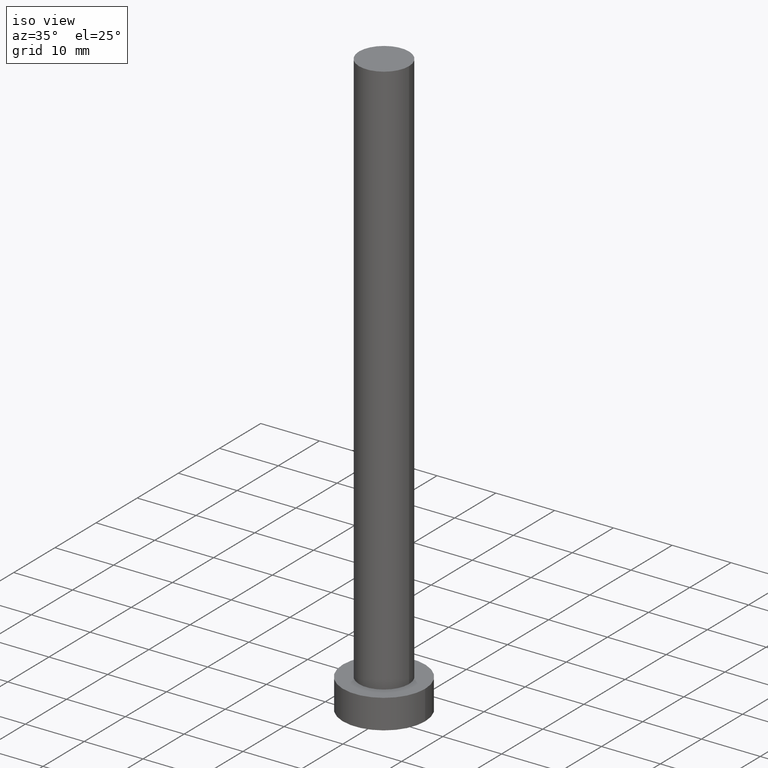
[diagram: clean part render]
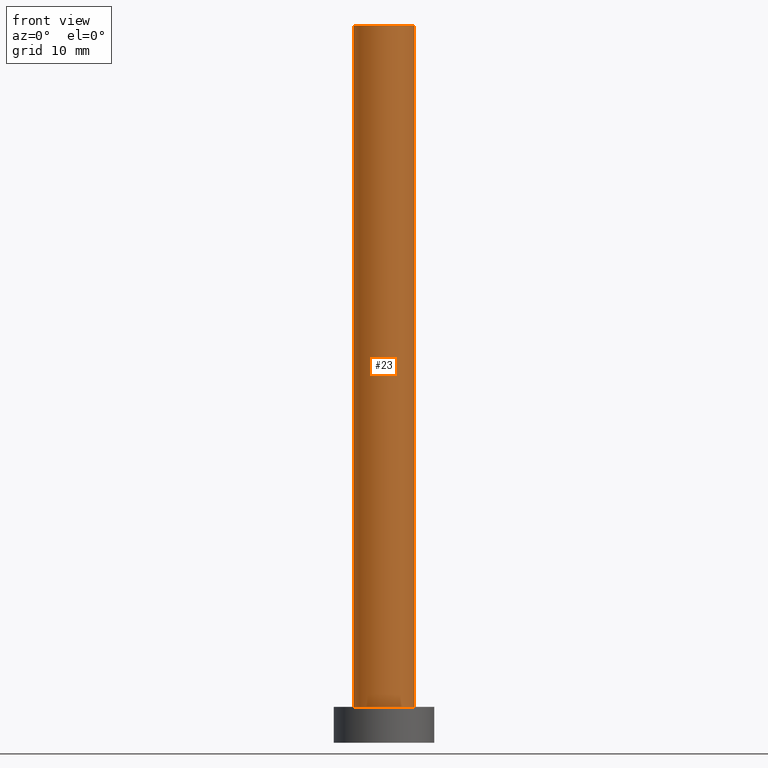
[diagram: tour spotlight — one face highlighted and labeled with its STEP entity id]
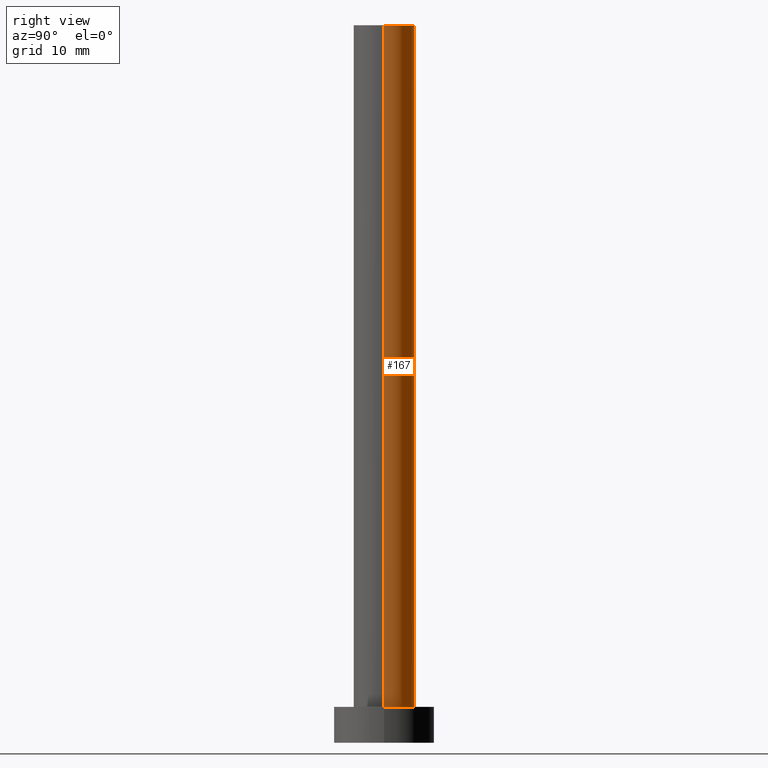
[diagram: tour spotlight — one face highlighted and labeled with its STEP entity id]
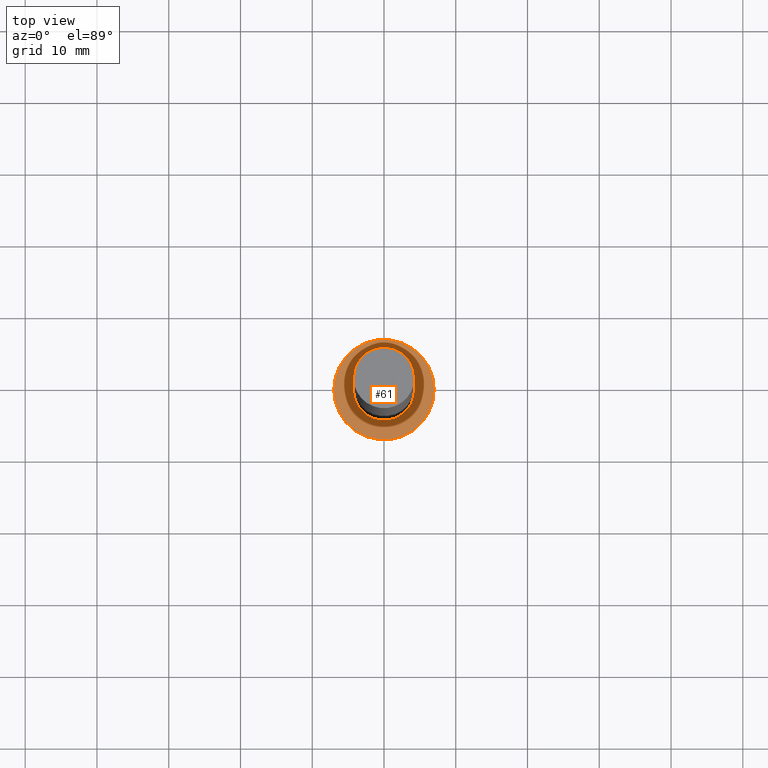
[diagram: tour spotlight — one face highlighted and labeled with its STEP entity id]
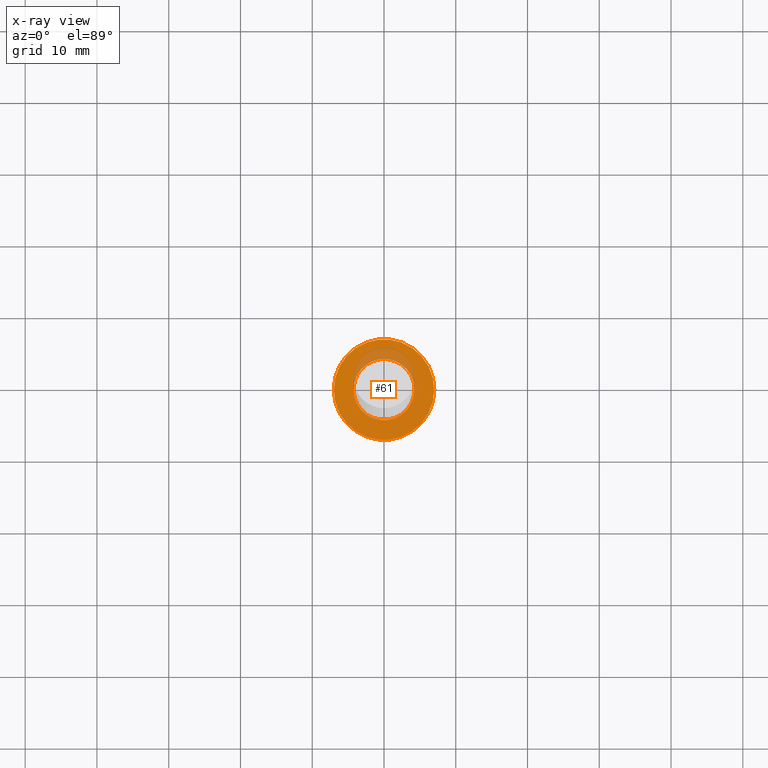
[diagram: x-ray of the same camera — body ghosted, this tour face saturated]
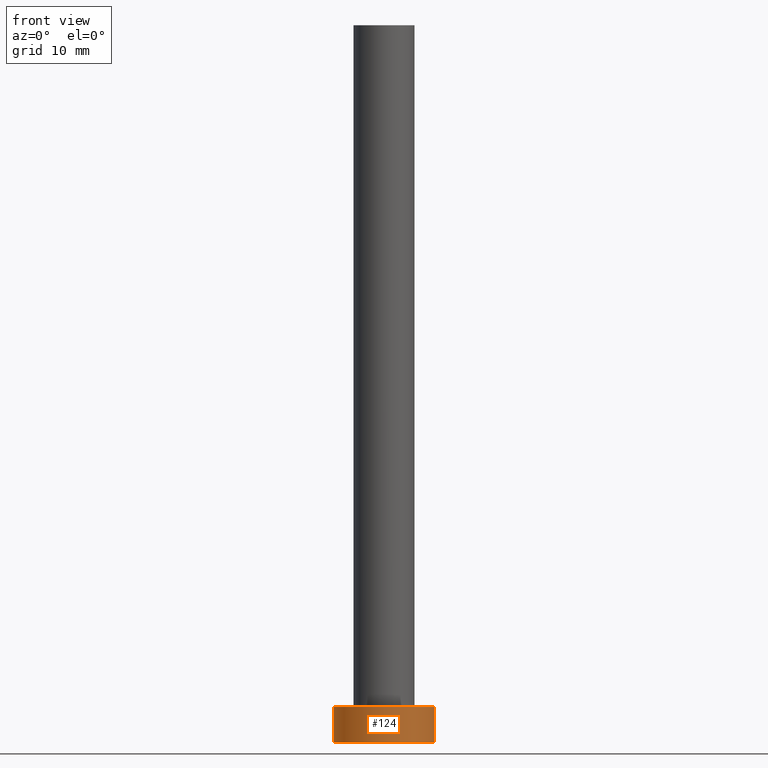
[diagram: tour spotlight — one face highlighted and labeled with its STEP entity id]
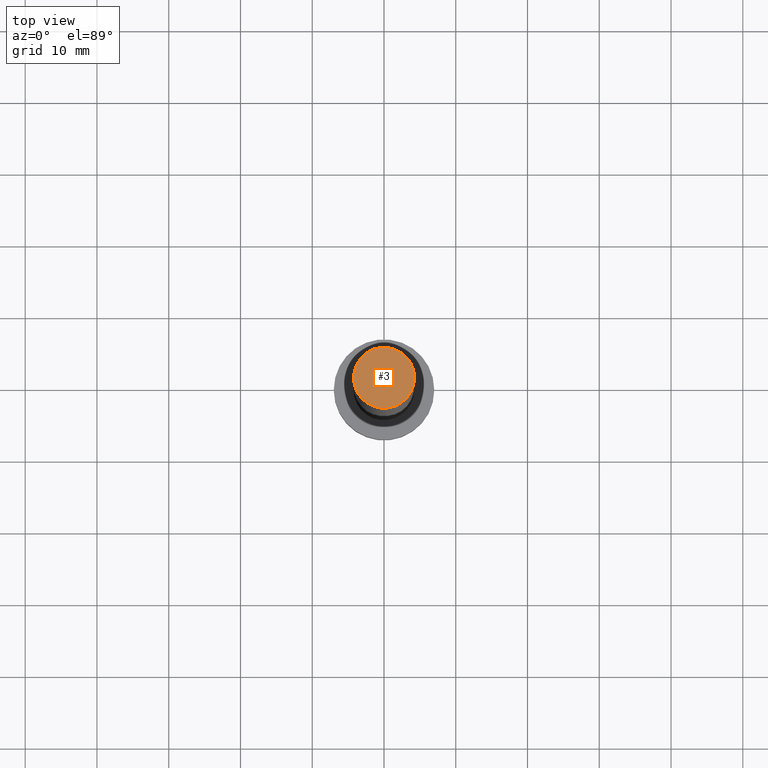
[diagram: tour spotlight — one face highlighted and labeled with its STEP entity id]
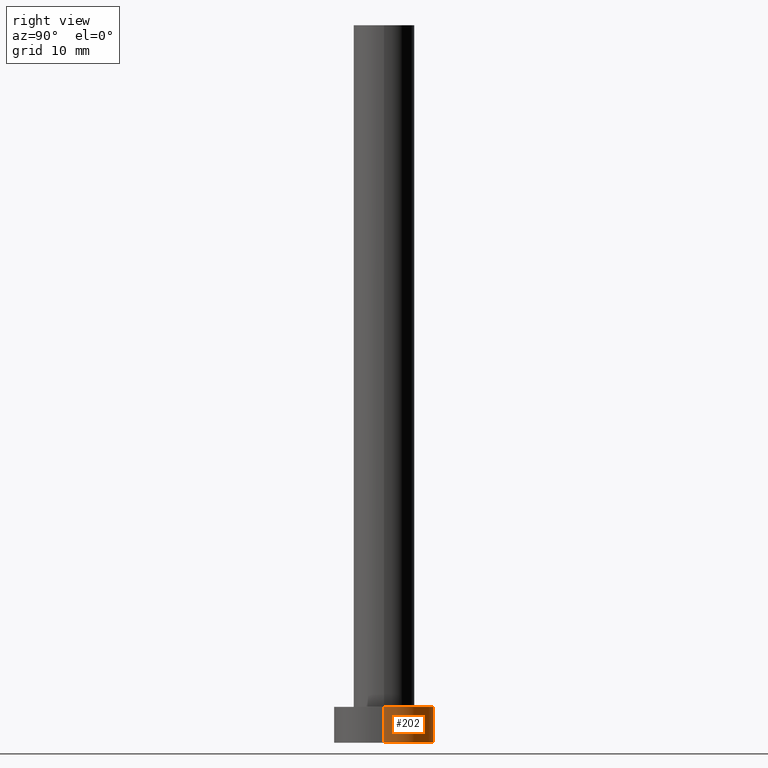
[diagram: tour spotlight — one face highlighted and labeled with its STEP entity id]
A machine part: a face-by-face anatomy tour. The part has 7 B-rep faces; the first image is the clean iso view, then the 6 largest visible faces are spotlighted one at a time (largest first), each with its STEP entity span.

Face 1 — front view, entity #23. In plain terms, the highlighted cylindrical surface (edge-blend (fillet) strip) has radius 4.25 mm, axis along (-0, -0, -1).
Definition (entity closure, byte-faithful):
#6 = VERTEX_POINT ( 'NONE', #36 ) ;
#7 = DIRECTION ( 'NONE',  ( -1.000000000000000000, 0.000000000000000000, 0.000000000000000000 ) ) ;
#8 = DIRECTION ( 'NONE',  ( -0.000000000000000000, -0.000000000000000000, -1.000000000000000000 ) ) ;
#16 = ORIENTED_EDGE ( 'NONE', *, *, #187, .F. ) ;
#19 = EDGE_LOOP ( 'NONE', ( #16, #248, #179, #169 ) ) ;
#23 = ADVANCED_FACE ( 'NONE', ( #166 ), #40, .T. ) ;
#29 = DIRECTION ( 'NONE',  ( 1.000000000000000000, 0.000000000000000000, 0.000000000000000000 ) ) ;
#36 = CARTESIAN_POINT ( 'NONE',  ( 4.250000000000000000, 5.204748896376250699E-16, 5.000000000000000000 ) ) ;
#40 = CYLINDRICAL_SURFACE ( 'NONE', #125, 4.250000000000000000 ) ;
#55 = DIRECTION ( 'NONE',  ( -0.000000000000000000, -0.000000000000000000, -1.000000000000000000 ) ) ;
#73 = LINE ( 'NONE', #236, #228 ) ;
#101 = CARTESIAN_POINT ( 'NONE',  ( 0.000000000000000000, 0.000000000000000000, 100.0000000000000000 ) ) ;
#104 = CARTESIAN_POINT ( 'NONE',  ( 0.000000000000000000, 0.000000000000000000, 100.0000000000000000 ) ) ;
#109 = CIRCLE ( 'NONE', #148, 4.250000000000000000 ) ;
#125 = AXIS2_PLACEMENT_3D ( 'NONE', #104, #184, #7 ) ;
#129 = AXIS2_PLACEMENT_3D ( 'NONE', #209, #132, #29 ) ;
#131 = VERTEX_POINT ( 'NONE', #238 ) ;
#132 = DIRECTION ( 'NONE',  ( 0.000000000000000000, 0.000000000000000000, 1.000000000000000000 ) ) ;
#134 = CARTESIAN_POINT ( 'NONE',  ( -4.250000000000000000, 0.000000000000000000, 5.000000000000000000 ) ) ;
#141 = DIRECTION ( 'NONE',  ( 0.000000000000000000, 0.000000000000000000, 1.000000000000000000 ) ) ;
#144 = EDGE_CURVE ( 'NONE', #131, #196, #73, .T. ) ;
#148 = AXIS2_PLACEMENT_3D ( 'NONE', #101, #141, #240 ) ;
#152 = CARTESIAN_POINT ( 'NONE',  ( 4.250000000000000000, 5.204748896376250699E-16, 100.0000000000000000 ) ) ;
#165 = CARTESIAN_POINT ( 'NONE',  ( 4.250000000000000000, 5.204748896376250699E-16, 100.0000000000000000 ) ) ;
#166 = FACE_OUTER_BOUND ( 'NONE', #19, .T. ) ;
#169 = ORIENTED_EDGE ( 'NONE', *, *, #208, .T. ) ;
#179 = ORIENTED_EDGE ( 'NONE', *, *, #144, .T. ) ;
#184 = DIRECTION ( 'NONE',  ( -0.000000000000000000, -0.000000000000000000, -1.000000000000000000 ) ) ;
#187 = EDGE_CURVE ( 'NONE', #192, #6, #241, .T. ) ;
#192 = VERTEX_POINT ( 'NONE', #152 ) ;
#196 = VERTEX_POINT ( 'NONE', #134 ) ;
#208 = EDGE_CURVE ( 'NONE', #196, #6, #249, .T. ) ;
#209 = CARTESIAN_POINT ( 'NONE',  ( 0.000000000000000000, 0.000000000000000000, 5.000000000000000000 ) ) ;
#224 = VECTOR ( 'NONE', #8, 1000.000000000000000 ) ;
#228 = VECTOR ( 'NONE', #55, 1000.000000000000000 ) ;
#236 = CARTESIAN_POINT ( 'NONE',  ( -4.250000000000000000, 0.000000000000000000, 100.0000000000000000 ) ) ;
#238 = CARTESIAN_POINT ( 'NONE',  ( -4.250000000000000000, 0.000000000000000000, 100.0000000000000000 ) ) ;
#240 = DIRECTION ( 'NONE',  ( 1.000000000000000000, 0.000000000000000000, 0.000000000000000000 ) ) ;
#241 = LINE ( 'NONE', #165, #224 ) ;
#243 = EDGE_CURVE ( 'NONE', #131, #192, #109, .T. ) ;
#248 = ORIENTED_EDGE ( 'NONE', *, *, #243, .F. ) ;
#249 = CIRCLE ( 'NONE', #129, 4.250000000000000000 ) ;

Face 2 — right view, entity #167. In plain terms, the highlighted cylindrical surface (edge-blend (fillet) strip) has radius 4.25 mm, axis along (-0, -0, -1).
Definition (entity closure, byte-faithful):
#5 = DIRECTION ( 'NONE',  ( 1.000000000000000000, 0.000000000000000000, 0.000000000000000000 ) ) ;
#6 = VERTEX_POINT ( 'NONE', #36 ) ;
#8 = DIRECTION ( 'NONE',  ( -0.000000000000000000, -0.000000000000000000, -1.000000000000000000 ) ) ;
#36 = CARTESIAN_POINT ( 'NONE',  ( 4.250000000000000000, 5.204748896376250699E-16, 5.000000000000000000 ) ) ;
#42 = AXIS2_PLACEMENT_3D ( 'NONE', #170, #178, #5 ) ;
#55 = DIRECTION ( 'NONE',  ( -0.000000000000000000, -0.000000000000000000, -1.000000000000000000 ) ) ;
#56 = ORIENTED_EDGE ( 'NONE', *, *, #144, .F. ) ;
#58 = EDGE_CURVE ( 'NONE', #6, #196, #90, .T. ) ;
#59 = CIRCLE ( 'NONE', #247, 4.250000000000000000 ) ;
#60 = DIRECTION ( 'NONE',  ( -1.000000000000000000, 0.000000000000000000, 0.000000000000000000 ) ) ;
#73 = LINE ( 'NONE', #236, #228 ) ;
#74 = ORIENTED_EDGE ( 'NONE', *, *, #58, .T. ) ;
#78 = EDGE_CURVE ( 'NONE', #192, #131, #59, .T. ) ;
#84 = CYLINDRICAL_SURFACE ( 'NONE', #122, 4.250000000000000000 ) ;
#90 = CIRCLE ( 'NONE', #42, 4.250000000000000000 ) ;
#116 = EDGE_LOOP ( 'NONE', ( #254, #142, #74, #56 ) ) ;
#122 = AXIS2_PLACEMENT_3D ( 'NONE', #146, #185, #60 ) ;
#131 = VERTEX_POINT ( 'NONE', #238 ) ;
#133 = CARTESIAN_POINT ( 'NONE',  ( 0.000000000000000000, 0.000000000000000000, 100.0000000000000000 ) ) ;
#134 = CARTESIAN_POINT ( 'NONE',  ( -4.250000000000000000, 0.000000000000000000, 5.000000000000000000 ) ) ;
#137 = DIRECTION ( 'NONE',  ( 1.000000000000000000, 0.000000000000000000, 0.000000000000000000 ) ) ;
#142 = ORIENTED_EDGE ( 'NONE', *, *, #187, .T. ) ;
#144 = EDGE_CURVE ( 'NONE', #131, #196, #73, .T. ) ;
#146 = CARTESIAN_POINT ( 'NONE',  ( 0.000000000000000000, 0.000000000000000000, 100.0000000000000000 ) ) ;
#152 = CARTESIAN_POINT ( 'NONE',  ( 4.250000000000000000, 5.204748896376250699E-16, 100.0000000000000000 ) ) ;
#164 = FACE_OUTER_BOUND ( 'NONE', #116, .T. ) ;
#165 = CARTESIAN_POINT ( 'NONE',  ( 4.250000000000000000, 5.204748896376250699E-16, 100.0000000000000000 ) ) ;
#167 = ADVANCED_FACE ( 'NONE', ( #164 ), #84, .T. ) ;
#170 = CARTESIAN_POINT ( 'NONE',  ( 0.000000000000000000, 0.000000000000000000, 5.000000000000000000 ) ) ;
#178 = DIRECTION ( 'NONE',  ( 0.000000000000000000, 0.000000000000000000, 1.000000000000000000 ) ) ;
#185 = DIRECTION ( 'NONE',  ( -0.000000000000000000, -0.000000000000000000, -1.000000000000000000 ) ) ;
#187 = EDGE_CURVE ( 'NONE', #192, #6, #241, .T. ) ;
#192 = VERTEX_POINT ( 'NONE', #152 ) ;
#196 = VERTEX_POINT ( 'NONE', #134 ) ;
#210 = DIRECTION ( 'NONE',  ( 0.000000000000000000, 0.000000000000000000, 1.000000000000000000 ) ) ;
#224 = VECTOR ( 'NONE', #8, 1000.000000000000000 ) ;
#228 = VECTOR ( 'NONE', #55, 1000.000000000000000 ) ;
#236 = CARTESIAN_POINT ( 'NONE',  ( -4.250000000000000000, 0.000000000000000000, 100.0000000000000000 ) ) ;
#238 = CARTESIAN_POINT ( 'NONE',  ( -4.250000000000000000, 0.000000000000000000, 100.0000000000000000 ) ) ;
#241 = LINE ( 'NONE', #165, #224 ) ;
#247 = AXIS2_PLACEMENT_3D ( 'NONE', #133, #210, #137 ) ;
#254 = ORIENTED_EDGE ( 'NONE', *, *, #78, .F. ) ;

Face 3 — top view, entity #61. An x-ray twin of the same camera follows (body ghosted, this face saturated) — the face is partly hidden behind the body. In plain terms, the highlighted planar face has unit normal (0, 0, 1).
Definition (entity closure, byte-faithful):
#5 = DIRECTION ( 'NONE',  ( 1.000000000000000000, 0.000000000000000000, 0.000000000000000000 ) ) ;
#6 = VERTEX_POINT ( 'NONE', #36 ) ;
#22 = ORIENTED_EDGE ( 'NONE', *, *, #150, .T. ) ;
#25 = AXIS2_PLACEMENT_3D ( 'NONE', #214, #35, #118 ) ;
#27 = EDGE_CURVE ( 'NONE', #47, #233, #65, .T. ) ;
#29 = DIRECTION ( 'NONE',  ( 1.000000000000000000, 0.000000000000000000, 0.000000000000000000 ) ) ;
#31 = ORIENTED_EDGE ( 'NONE', *, *, #208, .F. ) ;
#33 = DIRECTION ( 'NONE',  ( 1.000000000000000000, 0.000000000000000000, -0.000000000000000000 ) ) ;
#35 = DIRECTION ( 'NONE',  ( 0.000000000000000000, 0.000000000000000000, 1.000000000000000000 ) ) ;
#36 = CARTESIAN_POINT ( 'NONE',  ( 4.250000000000000000, 5.204748896376250699E-16, 5.000000000000000000 ) ) ;
#42 = AXIS2_PLACEMENT_3D ( 'NONE', #170, #178, #5 ) ;
#47 = VERTEX_POINT ( 'NONE', #229 ) ;
#50 = DIRECTION ( 'NONE',  ( 0.000000000000000000, 0.000000000000000000, 1.000000000000000000 ) ) ;
#54 = AXIS2_PLACEMENT_3D ( 'NONE', #198, #50, #33 ) ;
#57 = ORIENTED_EDGE ( 'NONE', *, *, #27, .T. ) ;
#58 = EDGE_CURVE ( 'NONE', #6, #196, #90, .T. ) ;
#61 = ADVANCED_FACE ( 'NONE', ( #250, #157 ), #212, .T. ) ;
#65 = CIRCLE ( 'NONE', #162, 7.000000000000000000 ) ;
#67 = EDGE_LOOP ( 'NONE', ( #31, #93 ) ) ;
#81 = DIRECTION ( 'NONE',  ( 0.000000000000000000, 0.000000000000000000, 1.000000000000000000 ) ) ;
#82 = CARTESIAN_POINT ( 'NONE',  ( 0.000000000000000000, 0.000000000000000000, 5.000000000000000000 ) ) ;
#90 = CIRCLE ( 'NONE', #42, 4.250000000000000000 ) ;
#93 = ORIENTED_EDGE ( 'NONE', *, *, #58, .F. ) ;
#94 = DIRECTION ( 'NONE',  ( 1.000000000000000000, 0.000000000000000000, 0.000000000000000000 ) ) ;
#117 = CARTESIAN_POINT ( 'NONE',  ( -7.000000000000000000, 0.000000000000000000, 5.000000000000000000 ) ) ;
#118 = DIRECTION ( 'NONE',  ( 1.000000000000000000, 0.000000000000000000, 0.000000000000000000 ) ) ;
#129 = AXIS2_PLACEMENT_3D ( 'NONE', #209, #132, #29 ) ;
#132 = DIRECTION ( 'NONE',  ( 0.000000000000000000, 0.000000000000000000, 1.000000000000000000 ) ) ;
#134 = CARTESIAN_POINT ( 'NONE',  ( -4.250000000000000000, 0.000000000000000000, 5.000000000000000000 ) ) ;
#139 = EDGE_LOOP ( 'NONE', ( #22, #57 ) ) ;
#150 = EDGE_CURVE ( 'NONE', #233, #47, #242, .T. ) ;
#157 = FACE_OUTER_BOUND ( 'NONE', #139, .T. ) ;
#162 = AXIS2_PLACEMENT_3D ( 'NONE', #82, #81, #94 ) ;
#170 = CARTESIAN_POINT ( 'NONE',  ( 0.000000000000000000, 0.000000000000000000, 5.000000000000000000 ) ) ;
#178 = DIRECTION ( 'NONE',  ( 0.000000000000000000, 0.000000000000000000, 1.000000000000000000 ) ) ;
#196 = VERTEX_POINT ( 'NONE', #134 ) ;
#198 = CARTESIAN_POINT ( 'NONE',  ( 0.000000000000000000, 0.000000000000000000, 5.000000000000000000 ) ) ;
#208 = EDGE_CURVE ( 'NONE', #196, #6, #249, .T. ) ;
#209 = CARTESIAN_POINT ( 'NONE',  ( 0.000000000000000000, 0.000000000000000000, 5.000000000000000000 ) ) ;
#212 = PLANE ( 'NONE',  #54 ) ;
#214 = CARTESIAN_POINT ( 'NONE',  ( 0.000000000000000000, 0.000000000000000000, 5.000000000000000000 ) ) ;
#229 = CARTESIAN_POINT ( 'NONE',  ( 7.000000000000000000, 8.572527594031473190E-16, 5.000000000000000000 ) ) ;
#233 = VERTEX_POINT ( 'NONE', #117 ) ;
#242 = CIRCLE ( 'NONE', #25, 7.000000000000000000 ) ;
#249 = CIRCLE ( 'NONE', #129, 4.250000000000000000 ) ;
#250 = FACE_BOUND ( 'NONE', #67, .T. ) ;

Face 4 — front view, entity #124. In plain terms, the highlighted cylindrical surface (partial cylindrical patch) has radius 7 mm, axis along (-0, -0, -1).
Definition (entity closure, byte-faithful):
#2 = ORIENTED_EDGE ( 'NONE', *, *, #225, .T. ) ;
#4 = CIRCLE ( 'NONE', #76, 7.000000000000000000 ) ;
#9 = VECTOR ( 'NONE', #99, 1000.000000000000000 ) ;
#18 = CYLINDRICAL_SURFACE ( 'NONE', #83, 7.000000000000000000 ) ;
#20 = CARTESIAN_POINT ( 'NONE',  ( 7.000000000000000000, 8.572527594031473190E-16, 5.000000000000000000 ) ) ;
#21 = EDGE_CURVE ( 'NONE', #47, #211, #199, .T. ) ;
#25 = AXIS2_PLACEMENT_3D ( 'NONE', #214, #35, #118 ) ;
#35 = DIRECTION ( 'NONE',  ( 0.000000000000000000, 0.000000000000000000, 1.000000000000000000 ) ) ;
#47 = VERTEX_POINT ( 'NONE', #229 ) ;
#72 = ORIENTED_EDGE ( 'NONE', *, *, #21, .F. ) ;
#76 = AXIS2_PLACEMENT_3D ( 'NONE', #175, #123, #200 ) ;
#83 = AXIS2_PLACEMENT_3D ( 'NONE', #195, #163, #172 ) ;
#87 = CARTESIAN_POINT ( 'NONE',  ( -7.000000000000000000, 0.000000000000000000, 0.000000000000000000 ) ) ;
#92 = EDGE_LOOP ( 'NONE', ( #72, #251, #110, #2 ) ) ;
#97 = VECTOR ( 'NONE', #156, 1000.000000000000000 ) ;
#98 = CARTESIAN_POINT ( 'NONE',  ( 7.000000000000000000, 8.572527594031473190E-16, 0.000000000000000000 ) ) ;
#99 = DIRECTION ( 'NONE',  ( -0.000000000000000000, -0.000000000000000000, -1.000000000000000000 ) ) ;
#110 = ORIENTED_EDGE ( 'NONE', *, *, #189, .T. ) ;
#115 = FACE_OUTER_BOUND ( 'NONE', #92, .T. ) ;
#117 = CARTESIAN_POINT ( 'NONE',  ( -7.000000000000000000, 0.000000000000000000, 5.000000000000000000 ) ) ;
#118 = DIRECTION ( 'NONE',  ( 1.000000000000000000, 0.000000000000000000, 0.000000000000000000 ) ) ;
#123 = DIRECTION ( 'NONE',  ( 0.000000000000000000, 0.000000000000000000, 1.000000000000000000 ) ) ;
#124 = ADVANCED_FACE ( 'NONE', ( #115 ), #18, .T. ) ;
#150 = EDGE_CURVE ( 'NONE', #233, #47, #242, .T. ) ;
#156 = DIRECTION ( 'NONE',  ( -0.000000000000000000, -0.000000000000000000, -1.000000000000000000 ) ) ;
#163 = DIRECTION ( 'NONE',  ( -0.000000000000000000, -0.000000000000000000, -1.000000000000000000 ) ) ;
#172 = DIRECTION ( 'NONE',  ( -1.000000000000000000, 0.000000000000000000, 0.000000000000000000 ) ) ;
#173 = VERTEX_POINT ( 'NONE', #87 ) ;
#175 = CARTESIAN_POINT ( 'NONE',  ( 0.000000000000000000, 0.000000000000000000, 0.000000000000000000 ) ) ;
#189 = EDGE_CURVE ( 'NONE', #233, #173, #244, .T. ) ;
#195 = CARTESIAN_POINT ( 'NONE',  ( 0.000000000000000000, 0.000000000000000000, 5.000000000000000000 ) ) ;
#199 = LINE ( 'NONE', #20, #9 ) ;
#200 = DIRECTION ( 'NONE',  ( 1.000000000000000000, 0.000000000000000000, 0.000000000000000000 ) ) ;
#211 = VERTEX_POINT ( 'NONE', #98 ) ;
#214 = CARTESIAN_POINT ( 'NONE',  ( 0.000000000000000000, 0.000000000000000000, 5.000000000000000000 ) ) ;
#219 = CARTESIAN_POINT ( 'NONE',  ( -7.000000000000000000, 0.000000000000000000, 5.000000000000000000 ) ) ;
#225 = EDGE_CURVE ( 'NONE', #173, #211, #4, .T. ) ;
#229 = CARTESIAN_POINT ( 'NONE',  ( 7.000000000000000000, 8.572527594031473190E-16, 5.000000000000000000 ) ) ;
#233 = VERTEX_POINT ( 'NONE', #117 ) ;
#242 = CIRCLE ( 'NONE', #25, 7.000000000000000000 ) ;
#244 = LINE ( 'NONE', #219, #97 ) ;
#251 = ORIENTED_EDGE ( 'NONE', *, *, #150, .F. ) ;

Face 5 — top view, entity #3. In plain terms, the highlighted planar face has unit normal (0, 0, 1).
Definition (entity closure, byte-faithful):
#3 = ADVANCED_FACE ( 'NONE', ( #96 ), #235, .T. ) ;
#34 = DIRECTION ( 'NONE',  ( 1.000000000000000000, 0.000000000000000000, -0.000000000000000000 ) ) ;
#51 = CARTESIAN_POINT ( 'NONE',  ( 0.000000000000000000, 0.000000000000000000, 100.0000000000000000 ) ) ;
#53 = DIRECTION ( 'NONE',  ( 0.000000000000000000, 0.000000000000000000, 1.000000000000000000 ) ) ;
#59 = CIRCLE ( 'NONE', #247, 4.250000000000000000 ) ;
#78 = EDGE_CURVE ( 'NONE', #192, #131, #59, .T. ) ;
#96 = FACE_OUTER_BOUND ( 'NONE', #230, .T. ) ;
#101 = CARTESIAN_POINT ( 'NONE',  ( 0.000000000000000000, 0.000000000000000000, 100.0000000000000000 ) ) ;
#109 = CIRCLE ( 'NONE', #148, 4.250000000000000000 ) ;
#131 = VERTEX_POINT ( 'NONE', #238 ) ;
#133 = CARTESIAN_POINT ( 'NONE',  ( 0.000000000000000000, 0.000000000000000000, 100.0000000000000000 ) ) ;
#137 = DIRECTION ( 'NONE',  ( 1.000000000000000000, 0.000000000000000000, 0.000000000000000000 ) ) ;
#141 = DIRECTION ( 'NONE',  ( 0.000000000000000000, 0.000000000000000000, 1.000000000000000000 ) ) ;
#148 = AXIS2_PLACEMENT_3D ( 'NONE', #101, #141, #240 ) ;
#152 = CARTESIAN_POINT ( 'NONE',  ( 4.250000000000000000, 5.204748896376250699E-16, 100.0000000000000000 ) ) ;
#171 = ORIENTED_EDGE ( 'NONE', *, *, #78, .T. ) ;
#191 = ORIENTED_EDGE ( 'NONE', *, *, #243, .T. ) ;
#192 = VERTEX_POINT ( 'NONE', #152 ) ;
#203 = AXIS2_PLACEMENT_3D ( 'NONE', #51, #53, #34 ) ;
#210 = DIRECTION ( 'NONE',  ( 0.000000000000000000, 0.000000000000000000, 1.000000000000000000 ) ) ;
#230 = EDGE_LOOP ( 'NONE', ( #191, #171 ) ) ;
#235 = PLANE ( 'NONE',  #203 ) ;
#238 = CARTESIAN_POINT ( 'NONE',  ( -4.250000000000000000, 0.000000000000000000, 100.0000000000000000 ) ) ;
#240 = DIRECTION ( 'NONE',  ( 1.000000000000000000, 0.000000000000000000, 0.000000000000000000 ) ) ;
#243 = EDGE_CURVE ( 'NONE', #131, #192, #109, .T. ) ;
#247 = AXIS2_PLACEMENT_3D ( 'NONE', #133, #210, #137 ) ;

Face 6 — right view, entity #202. In plain terms, the highlighted cylindrical surface (partial cylindrical patch) has radius 7 mm, axis along (-0, -0, -1).
Definition (entity closure, byte-faithful):
#9 = VECTOR ( 'NONE', #99, 1000.000000000000000 ) ;
#15 = CIRCLE ( 'NONE', #26, 7.000000000000000000 ) ;
#17 = ORIENTED_EDGE ( 'NONE', *, *, #21, .T. ) ;
#20 = CARTESIAN_POINT ( 'NONE',  ( 7.000000000000000000, 8.572527594031473190E-16, 5.000000000000000000 ) ) ;
#21 = EDGE_CURVE ( 'NONE', #47, #211, #199, .T. ) ;
#26 = AXIS2_PLACEMENT_3D ( 'NONE', #161, #30, #79 ) ;
#27 = EDGE_CURVE ( 'NONE', #47, #233, #65, .T. ) ;
#28 = ORIENTED_EDGE ( 'NONE', *, *, #27, .F. ) ;
#30 = DIRECTION ( 'NONE',  ( 0.000000000000000000, 0.000000000000000000, 1.000000000000000000 ) ) ;
#47 = VERTEX_POINT ( 'NONE', #229 ) ;
#49 = DIRECTION ( 'NONE',  ( -1.000000000000000000, 0.000000000000000000, 0.000000000000000000 ) ) ;
#65 = CIRCLE ( 'NONE', #162, 7.000000000000000000 ) ;
#66 = CYLINDRICAL_SURFACE ( 'NONE', #246, 7.000000000000000000 ) ;
#70 = DIRECTION ( 'NONE',  ( -0.000000000000000000, -0.000000000000000000, -1.000000000000000000 ) ) ;
#79 = DIRECTION ( 'NONE',  ( 1.000000000000000000, 0.000000000000000000, 0.000000000000000000 ) ) ;
#81 = DIRECTION ( 'NONE',  ( 0.000000000000000000, 0.000000000000000000, 1.000000000000000000 ) ) ;
#82 = CARTESIAN_POINT ( 'NONE',  ( 0.000000000000000000, 0.000000000000000000, 5.000000000000000000 ) ) ;
#87 = CARTESIAN_POINT ( 'NONE',  ( -7.000000000000000000, 0.000000000000000000, 0.000000000000000000 ) ) ;
#94 = DIRECTION ( 'NONE',  ( 1.000000000000000000, 0.000000000000000000, 0.000000000000000000 ) ) ;
#97 = VECTOR ( 'NONE', #156, 1000.000000000000000 ) ;
#98 = CARTESIAN_POINT ( 'NONE',  ( 7.000000000000000000, 8.572527594031473190E-16, 0.000000000000000000 ) ) ;
#99 = DIRECTION ( 'NONE',  ( -0.000000000000000000, -0.000000000000000000, -1.000000000000000000 ) ) ;
#113 = FACE_OUTER_BOUND ( 'NONE', #160, .T. ) ;
#117 = CARTESIAN_POINT ( 'NONE',  ( -7.000000000000000000, 0.000000000000000000, 5.000000000000000000 ) ) ;
#119 = ORIENTED_EDGE ( 'NONE', *, *, #120, .T. ) ;
#120 = EDGE_CURVE ( 'NONE', #211, #173, #15, .T. ) ;
#156 = DIRECTION ( 'NONE',  ( -0.000000000000000000, -0.000000000000000000, -1.000000000000000000 ) ) ;
#160 = EDGE_LOOP ( 'NONE', ( #28, #17, #119, #215 ) ) ;
#161 = CARTESIAN_POINT ( 'NONE',  ( 0.000000000000000000, 0.000000000000000000, 0.000000000000000000 ) ) ;
#162 = AXIS2_PLACEMENT_3D ( 'NONE', #82, #81, #94 ) ;
#173 = VERTEX_POINT ( 'NONE', #87 ) ;
#189 = EDGE_CURVE ( 'NONE', #233, #173, #244, .T. ) ;
#199 = LINE ( 'NONE', #20, #9 ) ;
#202 = ADVANCED_FACE ( 'NONE', ( #113 ), #66, .T. ) ;
#211 = VERTEX_POINT ( 'NONE', #98 ) ;
#215 = ORIENTED_EDGE ( 'NONE', *, *, #189, .F. ) ;
#219 = CARTESIAN_POINT ( 'NONE',  ( -7.000000000000000000, 0.000000000000000000, 5.000000000000000000 ) ) ;
#227 = CARTESIAN_POINT ( 'NONE',  ( 0.000000000000000000, 0.000000000000000000, 5.000000000000000000 ) ) ;
#229 = CARTESIAN_POINT ( 'NONE',  ( 7.000000000000000000, 8.572527594031473190E-16, 5.000000000000000000 ) ) ;
#233 = VERTEX_POINT ( 'NONE', #117 ) ;
#244 = LINE ( 'NONE', #219, #97 ) ;
#246 = AXIS2_PLACEMENT_3D ( 'NONE', #227, #70, #49 ) ;